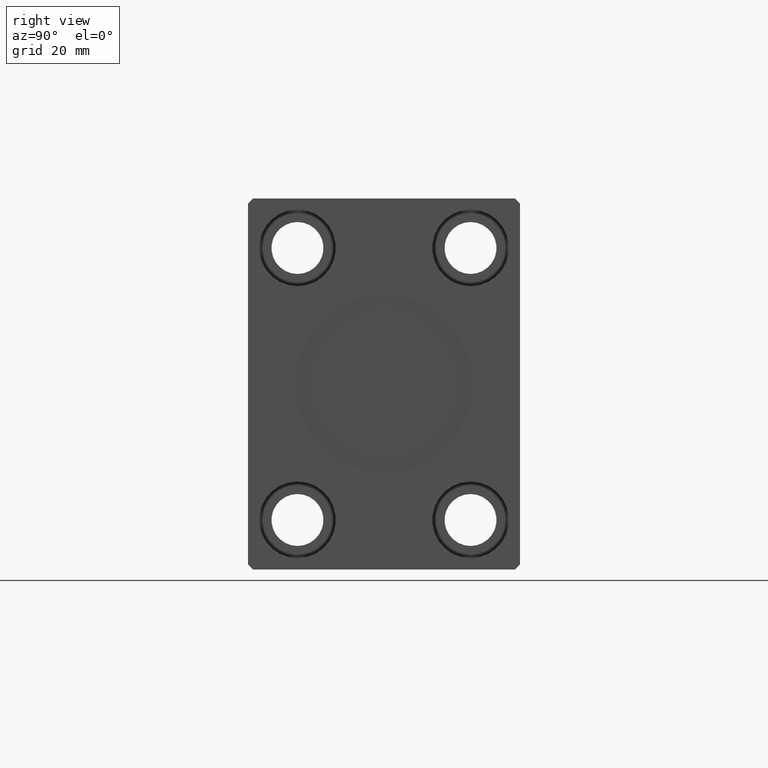
[diagram: clean part render]
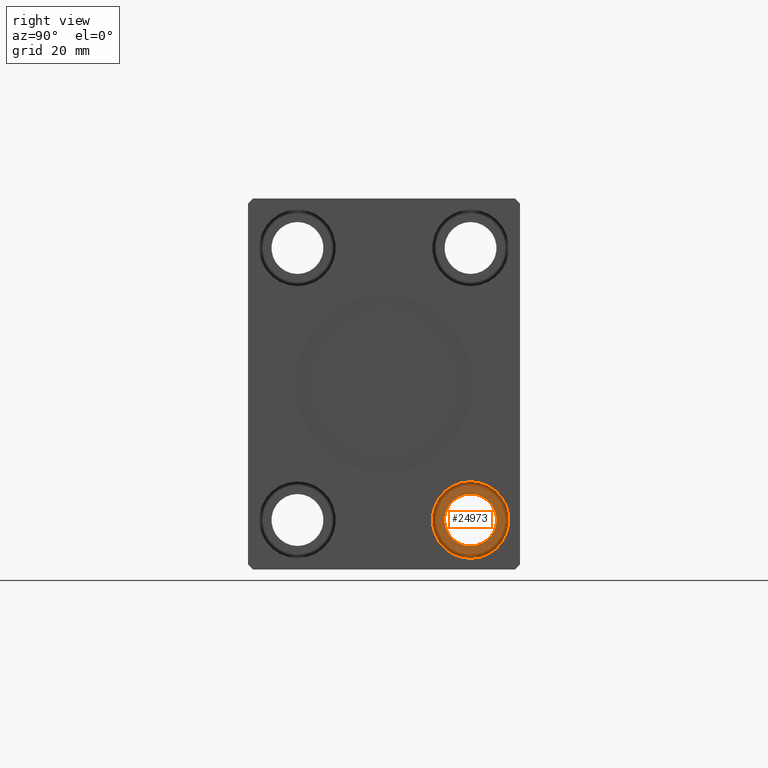
[diagram: same view with one face highlighted and labeled with its STEP entity id]
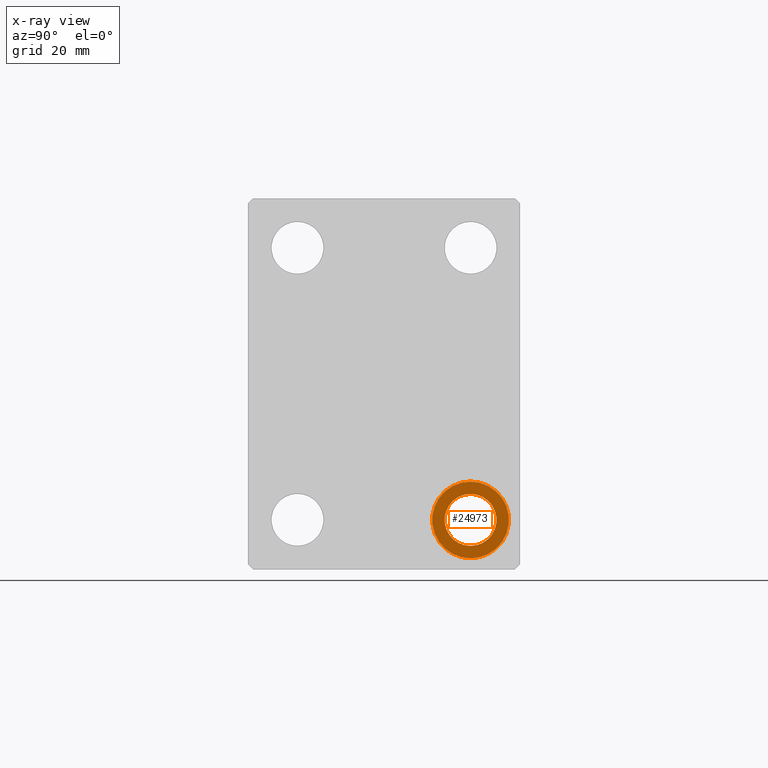
[diagram: x-ray of the same camera — body ghosted, the highlighted face saturated]
A machine part, right view. The second image highlights one B-rep face of the part: STEP entity #24973.
The next image is the same camera in x-ray: the body ghosted, the highlighted face saturated — about 0% of this face is hidden behind the body in this view.
In plain terms, the highlighted planar face has unit normal (1, 0, -0).
Its self-contained STEP definition (entity closure, byte-faithful):
#2336 = VERTEX_POINT ( 'NONE', #3531 ) ;
#3531 = CARTESIAN_POINT ( 'NONE',  ( 104.6700000000000017, 17.50000000000000000, -22.25000000000000000 ) ) ;
#4311 = VERTEX_POINT ( 'NONE', #14223 ) ;
#4890 = CARTESIAN_POINT ( 'NONE',  ( 104.6700000000000017, 17.50000000000000000, -27.50000000000000000 ) ) ;
#6047 = AXIS2_PLACEMENT_3D ( 'NONE', #4890, #22320, #38061 ) ;
#8064 = CARTESIAN_POINT ( 'NONE',  ( 104.6700000000000017, 17.50000000000000000, -32.75000000000000000 ) ) ;
#8226 = VERTEX_POINT ( 'NONE', #36564 ) ;
#9610 = CIRCLE ( 'NONE', #31644, 5.250000000000000888 ) ;
#11270 = CIRCLE ( 'NONE', #18169, 7.750000000000003553 ) ;
#11271 = DIRECTION ( 'NONE',  ( -1.000000000000000000, -0.000000000000000000, -0.000000000000000000 ) ) ;
#11720 = AXIS2_PLACEMENT_3D ( 'NONE', #30247, #37135, #14308 ) ;
#13476 = ORIENTED_EDGE ( 'NONE', *, *, #22797, .F. ) ;
#13765 = EDGE_CURVE ( 'NONE', #2336, #20105, #24663, .T. ) ;
#14223 = CARTESIAN_POINT ( 'NONE',  ( 104.6700000000000017, 17.50000000000000000, -35.25000000000000000 ) ) ;
#14308 = DIRECTION ( 'NONE',  ( 0.000000000000000000, 0.000000000000000000, 1.000000000000000000 ) ) ;
#18169 = AXIS2_PLACEMENT_3D ( 'NONE', #40778, #11271, #30443 ) ;
#18292 = DIRECTION ( 'NONE',  ( 0.000000000000000000, 0.000000000000000000, -1.000000000000000000 ) ) ;
#18502 = EDGE_CURVE ( 'NONE', #20105, #2336, #9610, .T. ) ;
#18672 = AXIS2_PLACEMENT_3D ( 'NONE', #26048, #35106, #19163 ) ;
#19163 = DIRECTION ( 'NONE',  ( 0.000000000000000000, 0.000000000000000000, 1.000000000000000000 ) ) ;
#19906 = PLANE ( 'NONE',  #11720 ) ;
#20105 = VERTEX_POINT ( 'NONE', #8064 ) ;
#21102 = DIRECTION ( 'NONE',  ( 1.000000000000000000, 0.000000000000000000, 0.000000000000000000 ) ) ;
#22320 = DIRECTION ( 'NONE',  ( 1.000000000000000000, 0.000000000000000000, 0.000000000000000000 ) ) ;
#22797 = EDGE_CURVE ( 'NONE', #4311, #8226, #23474, .T. ) ;
#23474 = CIRCLE ( 'NONE', #18672, 7.750000000000003553 ) ;
#24663 = CIRCLE ( 'NONE', #6047, 5.250000000000000888 ) ;
#24973 = ADVANCED_FACE ( 'NONE', ( #33482, #30032 ), #19906, .T. ) ;
#26048 = CARTESIAN_POINT ( 'NONE',  ( 104.6700000000000017, 17.50000000000000000, -27.50000000000000000 ) ) ;
#26063 = ORIENTED_EDGE ( 'NONE', *, *, #13765, .F. ) ;
#27186 = ORIENTED_EDGE ( 'NONE', *, *, #35241, .F. ) ;
#30032 = FACE_OUTER_BOUND ( 'NONE', #39966, .T. ) ;
#30247 = CARTESIAN_POINT ( 'NONE',  ( 104.6700000000000017, 17.50000000000000000, -27.50000000000000000 ) ) ;
#30443 = DIRECTION ( 'NONE',  ( 0.000000000000000000, 0.000000000000000000, 1.000000000000000000 ) ) ;
#30793 = CARTESIAN_POINT ( 'NONE',  ( 104.6700000000000017, 17.50000000000000000, -27.50000000000000000 ) ) ;
#31644 = AXIS2_PLACEMENT_3D ( 'NONE', #30793, #21102, #18292 ) ;
#33482 = FACE_BOUND ( 'NONE', #34409, .T. ) ;
#34409 = EDGE_LOOP ( 'NONE', ( #26063, #38838 ) ) ;
#35106 = DIRECTION ( 'NONE',  ( -1.000000000000000000, -0.000000000000000000, -0.000000000000000000 ) ) ;
#35241 = EDGE_CURVE ( 'NONE', #8226, #4311, #11270, .T. ) ;
#36564 = CARTESIAN_POINT ( 'NONE',  ( 104.6700000000000017, 17.50000000000000000, -19.74999999999999645 ) ) ;
#37135 = DIRECTION ( 'NONE',  ( 1.000000000000000000, 0.000000000000000000, -0.000000000000000000 ) ) ;
#38061 = DIRECTION ( 'NONE',  ( 0.000000000000000000, 0.000000000000000000, -1.000000000000000000 ) ) ;
#38838 = ORIENTED_EDGE ( 'NONE', *, *, #18502, .F. ) ;
#39966 = EDGE_LOOP ( 'NONE', ( #13476, #27186 ) ) ;
#40778 = CARTESIAN_POINT ( 'NONE',  ( 104.6700000000000017, 17.50000000000000000, -27.50000000000000000 ) ) ;